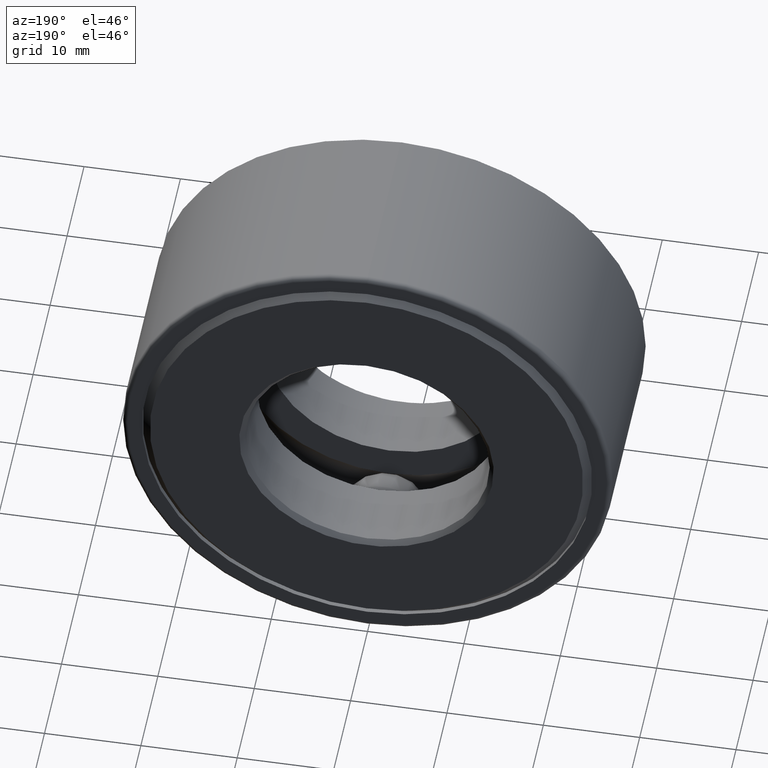
[diagram: clean part render]
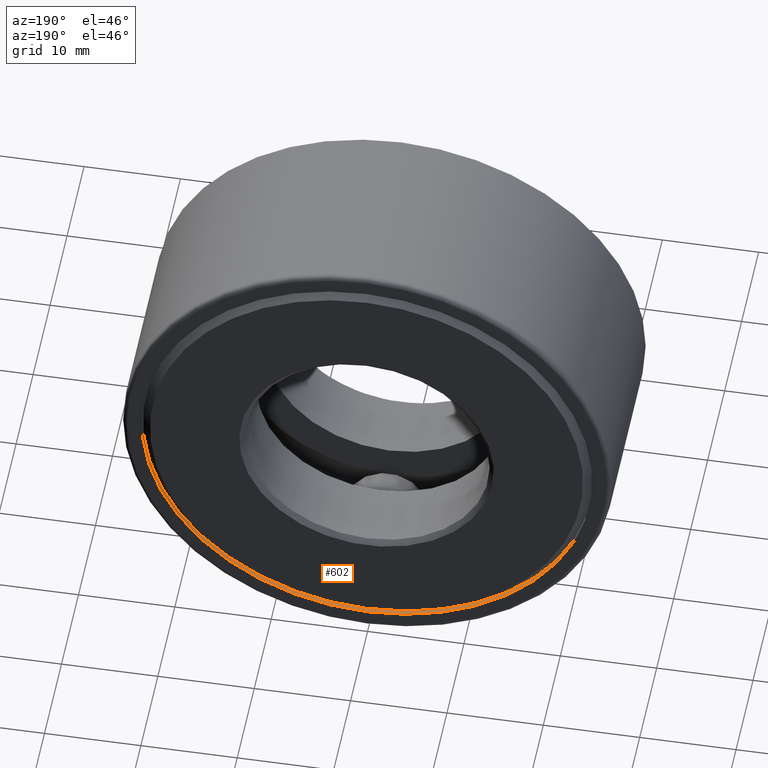
[diagram: same view with one face highlighted and labeled with its STEP entity id]
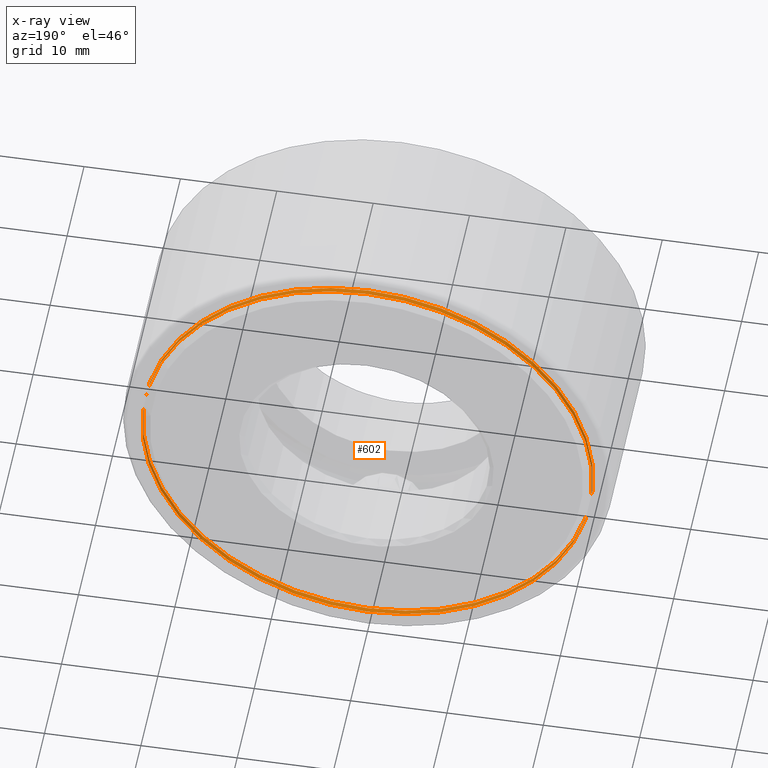
[diagram: x-ray of the same camera — body ghosted, the highlighted face saturated]
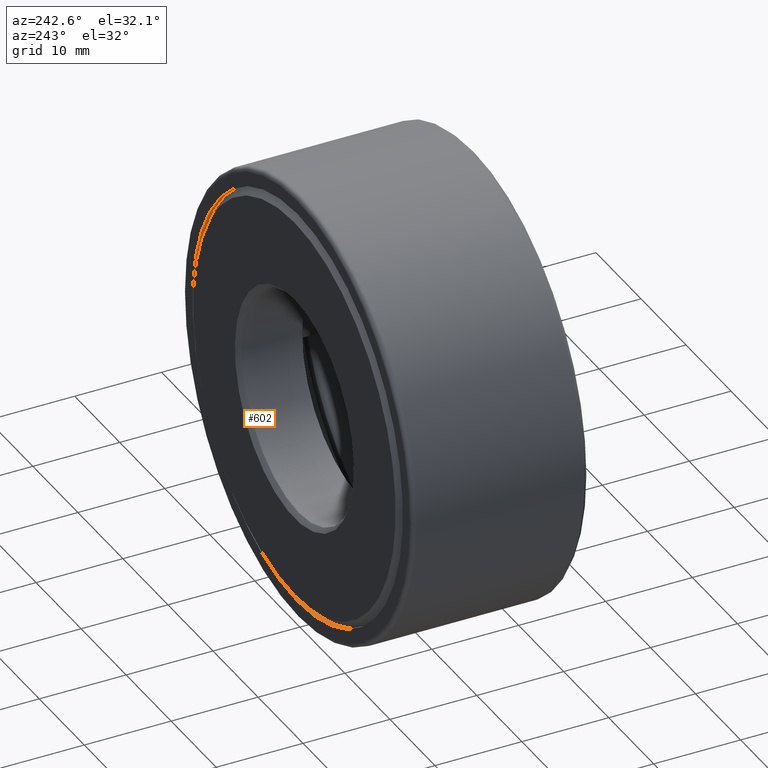
[diagram: same view with one face highlighted and labeled with its STEP entity id]
A machine part, auxiliary view. The second image highlights one B-rep face of the part: STEP entity #602.
The next image is the same camera in x-ray: the body ghosted, the highlighted face saturated — about 0% of this face is hidden behind the body in this view.
A second angle (auxiliary view) of the same face is appended — the face is thin or edge-on in the first view.
In plain terms, the highlighted cylindrical surface (bore or boss wall) has radius 23.368 mm, axis along (-0, 1, -0).
Its self-contained STEP definition (entity closure, byte-faithful):
#40 = EDGE_CURVE ( 'NONE', #171, #171, #191, .T. ) ;
#101 = CARTESIAN_POINT ( 'NONE',  ( 0.0000000000000000000, 0.7774999999999999700, 0.0000000000000000000 ) ) ;
#117 = AXIS2_PLACEMENT_3D ( 'NONE', #455, #412, #183 ) ;
#129 = VERTEX_POINT ( 'NONE', #500 ) ;
#171 = VERTEX_POINT ( 'NONE', #551 ) ;
#175 = EDGE_LOOP ( 'NONE', ( #300 ) ) ;
#183 = DIRECTION ( 'NONE',  ( 0.0000000000000000000, 0.0000000000000000000, 1.000000000000000000 ) ) ;
#191 = CIRCLE ( 'NONE', #598, 0.9200000000000000400 ) ;
#196 = DIRECTION ( 'NONE',  ( 0.0000000000000000000, 0.0000000000000000000, 1.000000000000000000 ) ) ;
#230 = AXIS2_PLACEMENT_3D ( 'NONE', #366, #454, #374 ) ;
#251 = CIRCLE ( 'NONE', #117, 0.9200000000000000400 ) ;
#300 = ORIENTED_EDGE ( 'NONE', *, *, #40, .F. ) ;
#331 = FACE_OUTER_BOUND ( 'NONE', #356, .T. ) ;
#341 = DIRECTION ( 'NONE',  ( -0.0000000000000000000, 1.000000000000000000, -0.0000000000000000000 ) ) ;
#356 = EDGE_LOOP ( 'NONE', ( #520 ) ) ;
#366 = CARTESIAN_POINT ( 'NONE',  ( 0.0000000000000000000, 0.0000000000000000000, 0.0000000000000000000 ) ) ;
#374 = DIRECTION ( 'NONE',  ( 0.0000000000000000000, 0.0000000000000000000, 1.000000000000000000 ) ) ;
#375 = FACE_OUTER_BOUND ( 'NONE', #175, .T. ) ;
#412 = DIRECTION ( 'NONE',  ( -0.0000000000000000000, 1.000000000000000000, -0.0000000000000000000 ) ) ;
#454 = DIRECTION ( 'NONE',  ( -0.0000000000000000000, 1.000000000000000000, -0.0000000000000000000 ) ) ;
#455 = CARTESIAN_POINT ( 'NONE',  ( 0.0000000000000000000, 0.7974999999999999900, 0.0000000000000000000 ) ) ;
#499 = CYLINDRICAL_SURFACE ( 'NONE', #230, 0.9200000000000000400 ) ;
#500 = CARTESIAN_POINT ( 'NONE',  ( 0.0000000000000000000, 0.7974999999999999900, 0.9200000000000000400 ) ) ;
#520 = ORIENTED_EDGE ( 'NONE', *, *, #584, .T. ) ;
#551 = CARTESIAN_POINT ( 'NONE',  ( 0.0000000000000000000, 0.7774999999999999700, 0.9200000000000000400 ) ) ;
#584 = EDGE_CURVE ( 'NONE', #129, #129, #251, .T. ) ;
#598 = AXIS2_PLACEMENT_3D ( 'NONE', #101, #341, #196 ) ;
#602 = ADVANCED_FACE ( 'NONE', ( #375, #331 ), #499, .F. ) ;